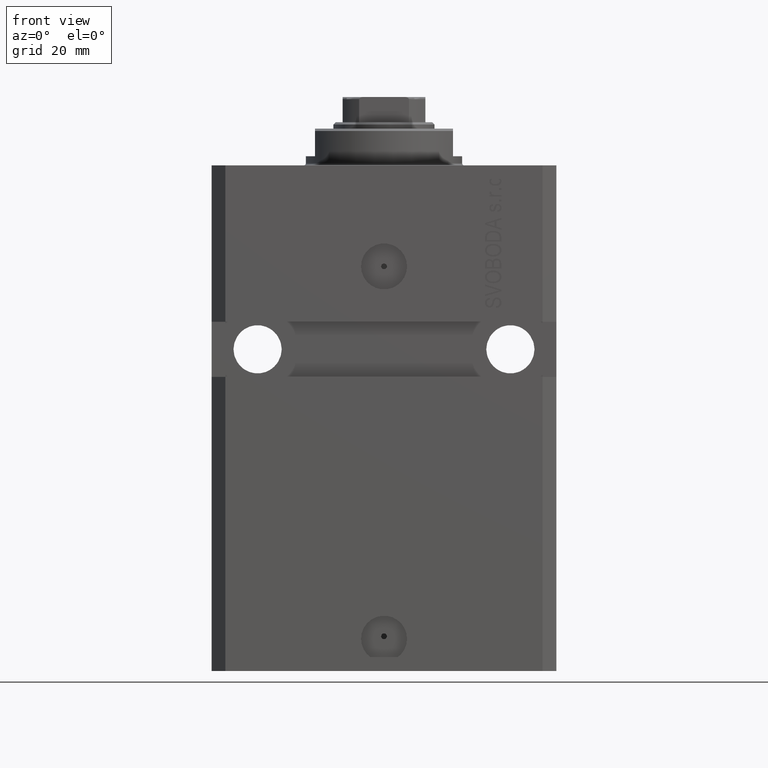
[diagram: clean part render]
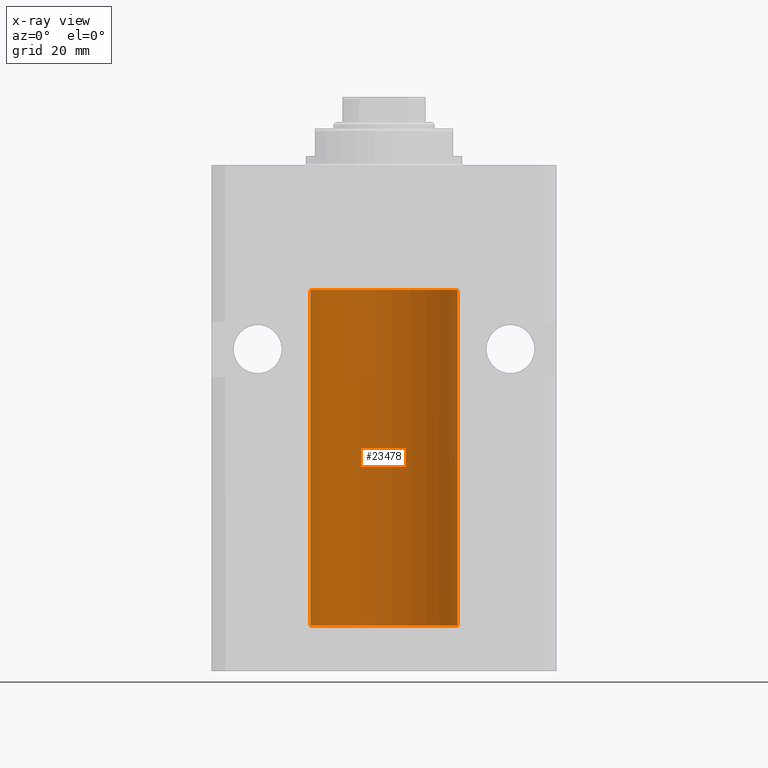
[diagram: x-ray — body ghosted, one internal face saturated and labeled with its STEP entity id]
A machine part, front view, then the same camera in x-ray: the body is ghosted and one INTERNAL B-rep face — a face not visible from any outside direction — is saturated and labeled: STEP entity #23478.
In plain terms, the highlighted cylindrical surface (partial cylindrical patch) has radius 16 mm, axis along (0, 0, 1).
Its self-contained STEP definition (entity closure, byte-faithful):
#998 = CARTESIAN_POINT ( 'NONE',  ( 0.000000000000000000, 0.000000000000000000, -27.10000000000000142 ) ) ;
#1278 = CARTESIAN_POINT ( 'NONE',  ( -15.99070653155267685, 0.5573233280232928744, -97.67348148680505915 ) ) ;
#1505 = CARTESIAN_POINT ( 'NONE',  ( -16.00000000000000711, 0.08259886010188650929, -97.37500000000000000 ) ) ;
#1770 = ORIENTED_EDGE ( 'NONE', *, *, #4678, .F. ) ;
#2778 = AXIS2_PLACEMENT_3D ( 'NONE', #36160, #18164, #43725 ) ;
#4462 = VERTEX_POINT ( 'NONE', #37597 ) ;
#4678 = EDGE_CURVE ( 'NONE', #40195, #42210, #32113, .T. ) ;
#5046 = CIRCLE ( 'NONE', #2778, 16.00000000000000000 ) ;
#5805 = B_SPLINE_CURVE_WITH_KNOTS ( 'NONE', 3,
 ( #37492, #1505, #19503, #16419, #15955, #1278, #30397, #37727, #40807, #27309, #23528, #33709, #45292, #44840 ),
 .UNSPECIFIED., .F., .F.,
 ( 4, 2, 2, 2, 2, 2, 4 ),
 ( 1.003919637555167698E-18, 0.0002442776652680894158, 0.0004885553305361776391, 0.0009771106610723541940, 0.001221388326340463017, 0.001465665991608572274, 0.001954221322144760863 ),
 .UNSPECIFIED. ) ;
#7030 = DIRECTION ( 'NONE',  ( -0.000000000000000000, -0.000000000000000000, 1.000000000000000000 ) ) ;
#7589 = CARTESIAN_POINT ( 'NONE',  ( -16.00000000000000000, -1.303459030566954747E-14, -97.37500000000000000 ) ) ;
#8822 = DIRECTION ( 'NONE',  ( 1.000000000000000000, 0.000000000000000000, 0.000000000000000000 ) ) ;
#9151 = VECTOR ( 'NONE', #7030, 1000.000000000000000 ) ;
#9283 = CYLINDRICAL_SURFACE ( 'NONE', #45284, 16.00000000000000000 ) ;
#10519 = CARTESIAN_POINT ( 'NONE',  ( 16.00000000000000000, 0.000000000000000000, -100.0999999999999943 ) ) ;
#11687 = VERTEX_POINT ( 'NONE', #10519 ) ;
#12113 = DIRECTION ( 'NONE',  ( 1.000000000000000000, 0.000000000000000000, 0.000000000000000000 ) ) ;
#13949 = EDGE_CURVE ( 'NONE', #17725, #42210, #26855, .T. ) ;
#15955 = CARTESIAN_POINT ( 'NONE',  ( -15.99548640841682712, 0.3843705577988784650, -97.50046628527007897 ) ) ;
#16419 = CARTESIAN_POINT ( 'NONE',  ( -15.99707730059171240, 0.3150375992092294686, -97.45402333202572720 ) ) ;
#16844 = FACE_OUTER_BOUND ( 'NONE', #25961, .T. ) ;
#17465 = VECTOR ( 'NONE', #35499, 1000.000000000000000 ) ;
#17725 = VERTEX_POINT ( 'NONE', #43024 ) ;
#17942 = EDGE_CURVE ( 'NONE', #11687, #4462, #5046, .T. ) ;
#18164 = DIRECTION ( 'NONE',  ( 0.000000000000000000, 0.000000000000000000, 1.000000000000000000 ) ) ;
#19503 = CARTESIAN_POINT ( 'NONE',  ( -15.99934216141748244, 0.1636497843296308152, -97.39126528029306940 ) ) ;
#19565 = ORIENTED_EDGE ( 'NONE', *, *, #13949, .T. ) ;
#20829 = LINE ( 'NONE', #25078, #17465 ) ;
#22771 = DIRECTION ( 'NONE',  ( 0.000000000000000000, 0.000000000000000000, 1.000000000000000000 ) ) ;
#23478 = ADVANCED_FACE ( 'NONE', ( #16844 ), #9283, .F. ) ;
#23528 = CARTESIAN_POINT ( 'NONE',  ( -15.99228023727724057, 0.5003781296993360383, -98.38347829554236057 ) ) ;
#25078 = CARTESIAN_POINT ( 'NONE',  ( 16.00000000000000000, 0.000000000000000000, -100.0999999999999943 ) ) ;
#25796 = VERTEX_POINT ( 'NONE', #32579 ) ;
#25961 = EDGE_LOOP ( 'NONE', ( #41777, #44809, #27656, #19565, #1770, #35699 ) ) ;
#26467 = CARTESIAN_POINT ( 'NONE',  ( -16.00000000000000000, 1.959434878635765131E-15, -100.0999999999999943 ) ) ;
#26855 = CIRCLE ( 'NONE', #38939, 16.00000000000000000 ) ;
#27309 = CARTESIAN_POINT ( 'NONE',  ( -15.99070426498503572, 0.5462220647145610286, -98.31460064614144301 ) ) ;
#27656 = ORIENTED_EDGE ( 'NONE', *, *, #32115, .T. ) ;
#30397 = CARTESIAN_POINT ( 'NONE',  ( -15.98779057735153941, 0.6249419637998017141, -97.83670145863504786 ) ) ;
#30549 = CARTESIAN_POINT ( 'NONE',  ( -16.00000000000000000, 1.959434878635765131E-15, -27.10000000000000142 ) ) ;
#31884 = CARTESIAN_POINT ( 'NONE',  ( -16.00000000000000000, 1.959434878635765131E-15, -100.0999999999999943 ) ) ;
#32113 = LINE ( 'NONE', #31884, #9151 ) ;
#32115 = EDGE_CURVE ( 'NONE', #11687, #17725, #20829, .T. ) ;
#32579 = CARTESIAN_POINT ( 'NONE',  ( -16.00000000000013145, 3.685127046438747128E-13, -98.62500000000343903 ) ) ;
#33709 = CARTESIAN_POINT ( 'NONE',  ( -15.99711699979841661, 0.3253759916140614439, -98.55856151623174810 ) ) ;
#34840 = DIRECTION ( 'NONE',  ( -0.000000000000000000, -0.000000000000000000, 1.000000000000000000 ) ) ;
#35499 = DIRECTION ( 'NONE',  ( -0.000000000000000000, -0.000000000000000000, 1.000000000000000000 ) ) ;
#35699 = ORIENTED_EDGE ( 'NONE', *, *, #44165, .T. ) ;
#36160 = CARTESIAN_POINT ( 'NONE',  ( 0.000000000000000000, 0.000000000000000000, -100.0999999999999943 ) ) ;
#37492 = CARTESIAN_POINT ( 'NONE',  ( -16.00000000000000000, -1.303459030566954747E-14, -97.37500000000000000 ) ) ;
#37597 = CARTESIAN_POINT ( 'NONE',  ( -16.00000000000000000, 1.959434878635765131E-15, -100.0999999999999943 ) ) ;
#37727 = CARTESIAN_POINT ( 'NONE',  ( -15.98778717651346604, 0.6250289588122097673, -98.08131585687051768 ) ) ;
#38939 = AXIS2_PLACEMENT_3D ( 'NONE', #998, #22771, #12113 ) ;
#40195 = VERTEX_POINT ( 'NONE', #7589 ) ;
#40807 = CARTESIAN_POINT ( 'NONE',  ( -15.98844267028590949, 0.6088369347963275002, -98.16324735024325321 ) ) ;
#40869 = VECTOR ( 'NONE', #44455, 1000.000000000000000 ) ;
#41604 = LINE ( 'NONE', #26467, #40869 ) ;
#41777 = ORIENTED_EDGE ( 'NONE', *, *, #42546, .F. ) ;
#42210 = VERTEX_POINT ( 'NONE', #30549 ) ;
#42546 = EDGE_CURVE ( 'NONE', #4462, #25796, #41604, .T. ) ;
#43024 = CARTESIAN_POINT ( 'NONE',  ( 16.00000000000000000, 0.000000000000000000, -27.10000000000000142 ) ) ;
#43725 = DIRECTION ( 'NONE',  ( 1.000000000000000000, 0.000000000000000000, 0.000000000000000000 ) ) ;
#44165 = EDGE_CURVE ( 'NONE', #40195, #25796, #5805, .T. ) ;
#44455 = DIRECTION ( 'NONE',  ( -0.000000000000000000, -0.000000000000000000, 1.000000000000000000 ) ) ;
#44809 = ORIENTED_EDGE ( 'NONE', *, *, #17942, .F. ) ;
#44840 = CARTESIAN_POINT ( 'NONE',  ( -16.00000000000013145, 3.685127046438747128E-13, -98.62500000000343903 ) ) ;
#45258 = CARTESIAN_POINT ( 'NONE',  ( 0.000000000000000000, 0.000000000000000000, -100.0999999999999943 ) ) ;
#45284 = AXIS2_PLACEMENT_3D ( 'NONE', #45258, #34840, #8822 ) ;
#45292 = CARTESIAN_POINT ( 'NONE',  ( -15.99999999999998934, 0.1631714642025804407, -98.62499999999987210 ) ) ;